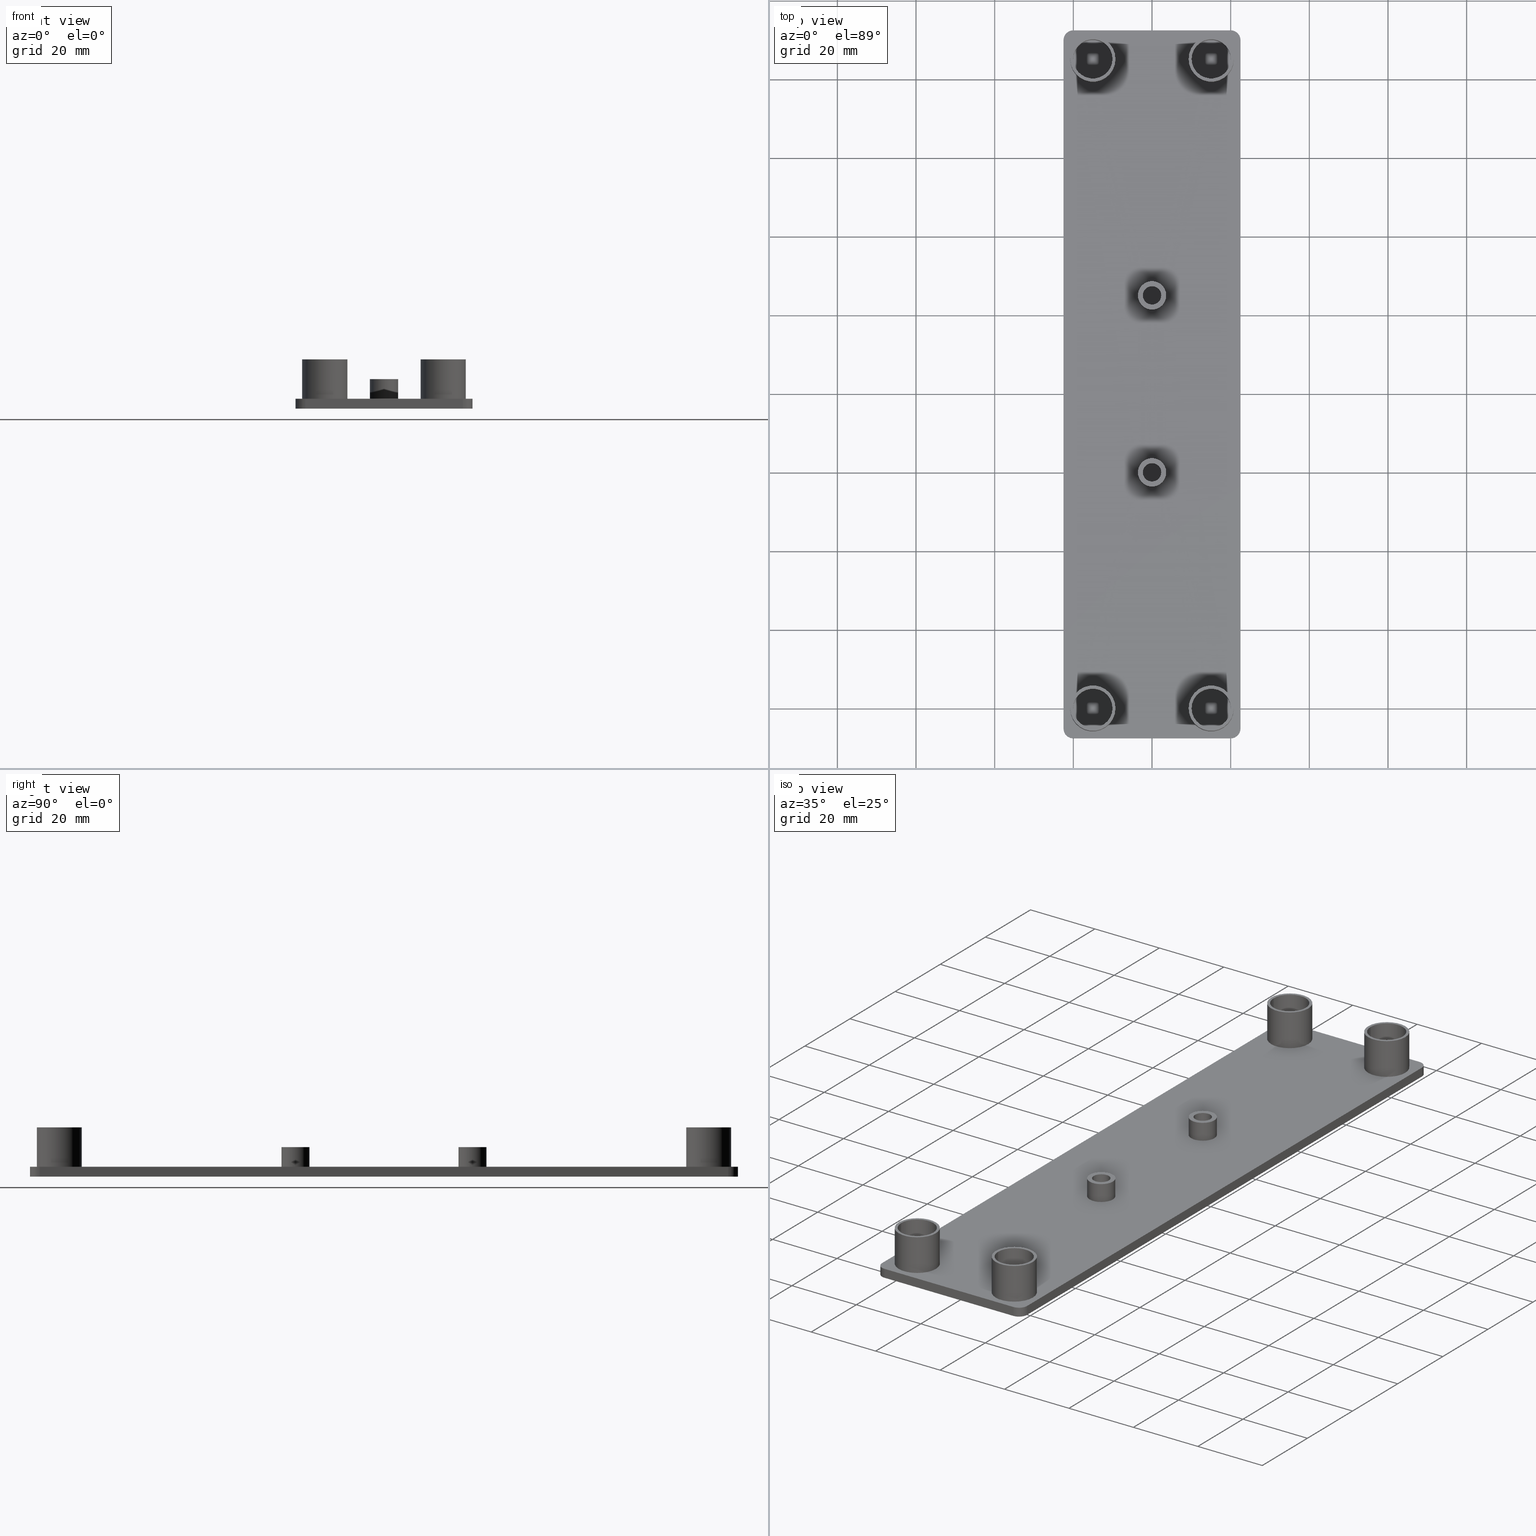
[diagram: canonical four-view strip — front | top / right | iso, engineering-drawing reading convention]
A machine part, canonical four-view strip (front | top / right | iso — engineering-drawing reading convention). The complete STEP part file that produces these views, byte-faithful:
ISO-10303-21;
HEADER;
/* Generated by software containing ST-Developer
 * from STEP Tools, Inc. (www.steptools.com) 
 */

FILE_DESCRIPTION(
/* description */ ('TAPPO 45X180 10CAVE NERO'),
/* implementation_level */ '2;1');

FILE_NAME(
/* name */ 'C:\\Users\\tecnico7\\Desktop\\DTPTR0000047.stp',
/* time_stamp */ '2022-07-07T17:03:05+02:00',
/* author */ ('tecnico7'),
/* organization */ (''),
/* preprocessor_version */ 'ST-DEVELOPER v18.1',
/* originating_system */ 'Autodesk Inventor 2022',
/* authorisation */ '');

FILE_SCHEMA (('AUTOMOTIVE_DESIGN { 1 0 10303 214 3 1 1 }'));
ENDSEC;

DATA;
#10=MECHANICAL_DESIGN_GEOMETRIC_PRESENTATION_REPRESENTATION('',(#448,#449,
#450,#451,#452,#453,#454,#455,#456,#457,#458,#459,#460,#461,#462,#463,#464,
#465,#466,#467,#468,#469,#470,#471,#472,#473,#474,#475,#476,#477,#478,#479,
#480,#481,#482),#906);
#11=SHAPE_REPRESENTATION_RELATIONSHIP('SRR','None',#913,#12);
#12=ADVANCED_BREP_SHAPE_REPRESENTATION('',(#13),#905);
#13=MANIFOLD_SOLID_BREP('None',#517);
#14=FACE_BOUND('',#141,.T.);
#15=FACE_BOUND('',#145,.T.);
#16=FACE_BOUND('',#149,.T.);
#17=FACE_BOUND('',#153,.T.);
#18=FACE_BOUND('',#157,.T.);
#19=FACE_BOUND('',#161,.T.);
#20=FACE_BOUND('',#165,.T.);
#21=FACE_BOUND('',#166,.T.);
#22=FACE_BOUND('',#167,.T.);
#23=FACE_BOUND('',#168,.T.);
#24=FACE_BOUND('',#169,.T.);
#25=FACE_BOUND('',#170,.T.);
#26=LINE('',#791,#54);
#27=LINE('',#796,#55);
#28=LINE('',#802,#56);
#29=LINE('',#807,#57);
#30=LINE('',#813,#58);
#31=LINE('',#818,#59);
#32=LINE('',#824,#60);
#33=LINE('',#829,#61);
#34=LINE('',#835,#62);
#35=LINE('',#840,#63);
#36=LINE('',#846,#64);
#37=LINE('',#851,#65);
#38=LINE('',#858,#66);
#39=LINE('',#862,#67);
#40=LINE('',#866,#68);
#41=LINE('',#869,#69);
#42=LINE('',#874,#70);
#43=LINE('',#875,#71);
#44=LINE('',#879,#72);
#45=LINE('',#882,#73);
#46=LINE('',#884,#74);
#47=LINE('',#888,#75);
#48=LINE('',#891,#76);
#49=LINE('',#892,#77);
#50=LINE('',#894,#78);
#51=LINE('',#895,#79);
#52=LINE('',#897,#80);
#53=LINE('',#898,#81);
#54=VECTOR('',#636,5.749999999977);
#55=VECTOR('',#643,4.99999999998);
#56=VECTOR('',#650,5.749999999977);
#57=VECTOR('',#657,4.99999999998);
#58=VECTOR('',#664,3.5999999999856);
#59=VECTOR('',#671,2.3499999999906);
#60=VECTOR('',#678,3.5999999999856);
#61=VECTOR('',#685,2.3499999999906);
#62=VECTOR('',#692,5.749999999977);
#63=VECTOR('',#699,4.99999999998);
#64=VECTOR('',#706,5.749999999977);
#65=VECTOR('',#713,4.99999999998);
#66=VECTOR('',#720,175.00000099928);
#67=VECTOR('',#723,39.9999539998198);
#68=VECTOR('',#726,175.00000099928);
#69=VECTOR('',#729,39.9999539998198);
#70=VECTOR('',#734,2.5);
#71=VECTOR('',#735,2.5);
#72=VECTOR('',#738,39.9999539998198);
#73=VECTOR('',#741,175.00000099928);
#74=VECTOR('',#742,39.9999539998198);
#75=VECTOR('',#745,175.00000099928);
#76=VECTOR('',#750,2.5);
#77=VECTOR('',#751,2.5);
#78=VECTOR('',#754,2.5);
#79=VECTOR('',#755,2.5);
#80=VECTOR('',#758,2.5);
#81=VECTOR('',#759,2.5);
#82=CYLINDRICAL_SURFACE('',#552,5.749999999977);
#83=CYLINDRICAL_SURFACE('',#555,4.99999999998);
#84=CYLINDRICAL_SURFACE('',#558,5.749999999977);
#85=CYLINDRICAL_SURFACE('',#561,4.99999999998);
#86=CYLINDRICAL_SURFACE('',#564,3.5999999999856);
#87=CYLINDRICAL_SURFACE('',#567,2.3499999999906);
#88=CYLINDRICAL_SURFACE('',#570,3.5999999999856);
#89=CYLINDRICAL_SURFACE('',#573,2.3499999999906);
#90=CYLINDRICAL_SURFACE('',#576,5.749999999977);
#91=CYLINDRICAL_SURFACE('',#579,4.99999999998);
#92=CYLINDRICAL_SURFACE('',#582,5.749999999977);
#93=CYLINDRICAL_SURFACE('',#585,4.99999999998);
#94=CYLINDRICAL_SURFACE('',#593,2.5);
#95=CYLINDRICAL_SURFACE('',#599,2.5);
#96=CYLINDRICAL_SURFACE('',#600,2.5);
#97=CYLINDRICAL_SURFACE('',#601,2.5);
#98=FACE_OUTER_BOUND('',#132,.T.);
#99=FACE_OUTER_BOUND('',#133,.T.);
#100=FACE_OUTER_BOUND('',#134,.T.);
#101=FACE_OUTER_BOUND('',#135,.T.);
#102=FACE_OUTER_BOUND('',#136,.T.);
#103=FACE_OUTER_BOUND('',#137,.T.);
#104=FACE_OUTER_BOUND('',#138,.T.);
#105=FACE_OUTER_BOUND('',#139,.T.);
#106=FACE_OUTER_BOUND('',#140,.T.);
#107=FACE_OUTER_BOUND('',#142,.T.);
#108=FACE_OUTER_BOUND('',#143,.T.);
#109=FACE_OUTER_BOUND('',#144,.T.);
#110=FACE_OUTER_BOUND('',#146,.T.);
#111=FACE_OUTER_BOUND('',#147,.T.);
#112=FACE_OUTER_BOUND('',#148,.T.);
#113=FACE_OUTER_BOUND('',#150,.T.);
#114=FACE_OUTER_BOUND('',#151,.T.);
#115=FACE_OUTER_BOUND('',#152,.T.);
#116=FACE_OUTER_BOUND('',#154,.T.);
#117=FACE_OUTER_BOUND('',#155,.T.);
#118=FACE_OUTER_BOUND('',#156,.T.);
#119=FACE_OUTER_BOUND('',#158,.T.);
#120=FACE_OUTER_BOUND('',#159,.T.);
#121=FACE_OUTER_BOUND('',#160,.T.);
#122=FACE_OUTER_BOUND('',#162,.T.);
#123=FACE_OUTER_BOUND('',#163,.T.);
#124=FACE_OUTER_BOUND('',#164,.T.);
#125=FACE_OUTER_BOUND('',#171,.T.);
#126=FACE_OUTER_BOUND('',#172,.T.);
#127=FACE_OUTER_BOUND('',#173,.T.);
#128=FACE_OUTER_BOUND('',#174,.T.);
#129=FACE_OUTER_BOUND('',#175,.T.);
#130=FACE_OUTER_BOUND('',#176,.T.);
#131=FACE_OUTER_BOUND('',#177,.T.);
#132=EDGE_LOOP('',(#310));
#133=EDGE_LOOP('',(#311));
#134=EDGE_LOOP('',(#312));
#135=EDGE_LOOP('',(#313));
#136=EDGE_LOOP('',(#314));
#137=EDGE_LOOP('',(#315));
#138=EDGE_LOOP('',(#316,#317,#318,#319));
#139=EDGE_LOOP('',(#320,#321,#322,#323));
#140=EDGE_LOOP('',(#324));
#141=EDGE_LOOP('',(#325));
#142=EDGE_LOOP('',(#326,#327,#328,#329));
#143=EDGE_LOOP('',(#330,#331,#332,#333));
#144=EDGE_LOOP('',(#334));
#145=EDGE_LOOP('',(#335));
#146=EDGE_LOOP('',(#336,#337,#338,#339));
#147=EDGE_LOOP('',(#340,#341,#342,#343));
#148=EDGE_LOOP('',(#344));
#149=EDGE_LOOP('',(#345));
#150=EDGE_LOOP('',(#346,#347,#348,#349));
#151=EDGE_LOOP('',(#350,#351,#352,#353));
#152=EDGE_LOOP('',(#354));
#153=EDGE_LOOP('',(#355));
#154=EDGE_LOOP('',(#356,#357,#358,#359));
#155=EDGE_LOOP('',(#360,#361,#362,#363));
#156=EDGE_LOOP('',(#364));
#157=EDGE_LOOP('',(#365));
#158=EDGE_LOOP('',(#366,#367,#368,#369));
#159=EDGE_LOOP('',(#370,#371,#372,#373));
#160=EDGE_LOOP('',(#374));
#161=EDGE_LOOP('',(#375));
#162=EDGE_LOOP('',(#376,#377,#378,#379,#380,#381,#382,#383));
#163=EDGE_LOOP('',(#384,#385,#386,#387));
#164=EDGE_LOOP('',(#388,#389,#390,#391,#392,#393,#394,#395));
#165=EDGE_LOOP('',(#396));
#166=EDGE_LOOP('',(#397));
#167=EDGE_LOOP('',(#398));
#168=EDGE_LOOP('',(#399));
#169=EDGE_LOOP('',(#400));
#170=EDGE_LOOP('',(#401));
#171=EDGE_LOOP('',(#402,#403,#404,#405));
#172=EDGE_LOOP('',(#406,#407,#408,#409));
#173=EDGE_LOOP('',(#410,#411,#412,#413));
#174=EDGE_LOOP('',(#414,#415,#416,#417));
#175=EDGE_LOOP('',(#418,#419,#420,#421));
#176=EDGE_LOOP('',(#422,#423,#424,#425));
#177=EDGE_LOOP('',(#426,#427,#428,#429));
#178=CIRCLE('',#541,4.99999999998);
#179=CIRCLE('',#543,4.99999999998);
#180=CIRCLE('',#545,2.3499999999906);
#181=CIRCLE('',#547,2.3499999999906);
#182=CIRCLE('',#549,4.99999999998);
#183=CIRCLE('',#551,4.99999999998);
#184=CIRCLE('',#553,5.749999999977);
#185=CIRCLE('',#554,5.749999999977);
#186=CIRCLE('',#556,4.99999999998);
#187=CIRCLE('',#559,5.749999999977);
#188=CIRCLE('',#560,5.749999999977);
#189=CIRCLE('',#562,4.99999999998);
#190=CIRCLE('',#565,3.5999999999856);
#191=CIRCLE('',#566,3.5999999999856);
#192=CIRCLE('',#568,2.3499999999906);
#193=CIRCLE('',#571,3.5999999999856);
#194=CIRCLE('',#572,3.5999999999856);
#195=CIRCLE('',#574,2.3499999999906);
#196=CIRCLE('',#577,5.749999999977);
#197=CIRCLE('',#578,5.749999999977);
#198=CIRCLE('',#580,4.99999999998);
#199=CIRCLE('',#583,5.749999999977);
#200=CIRCLE('',#584,5.749999999977);
#201=CIRCLE('',#586,4.99999999998);
#202=CIRCLE('',#589,2.5);
#203=CIRCLE('',#590,2.5);
#204=CIRCLE('',#591,2.5);
#205=CIRCLE('',#592,2.5);
#206=CIRCLE('',#594,2.5);
#207=CIRCLE('',#596,2.5);
#208=CIRCLE('',#597,2.5);
#209=CIRCLE('',#598,2.5);
#210=VERTEX_POINT('',#770);
#211=VERTEX_POINT('',#773);
#212=VERTEX_POINT('',#776);
#213=VERTEX_POINT('',#779);
#214=VERTEX_POINT('',#782);
#215=VERTEX_POINT('',#785);
#216=VERTEX_POINT('',#788);
#217=VERTEX_POINT('',#790);
#218=VERTEX_POINT('',#794);
#219=VERTEX_POINT('',#799);
#220=VERTEX_POINT('',#801);
#221=VERTEX_POINT('',#805);
#222=VERTEX_POINT('',#810);
#223=VERTEX_POINT('',#812);
#224=VERTEX_POINT('',#816);
#225=VERTEX_POINT('',#821);
#226=VERTEX_POINT('',#823);
#227=VERTEX_POINT('',#827);
#228=VERTEX_POINT('',#832);
#229=VERTEX_POINT('',#834);
#230=VERTEX_POINT('',#838);
#231=VERTEX_POINT('',#843);
#232=VERTEX_POINT('',#845);
#233=VERTEX_POINT('',#849);
#234=VERTEX_POINT('',#854);
#235=VERTEX_POINT('',#855);
#236=VERTEX_POINT('',#857);
#237=VERTEX_POINT('',#859);
#238=VERTEX_POINT('',#861);
#239=VERTEX_POINT('',#863);
#240=VERTEX_POINT('',#865);
#241=VERTEX_POINT('',#867);
#242=VERTEX_POINT('',#871);
#243=VERTEX_POINT('',#872);
#244=VERTEX_POINT('',#877);
#245=VERTEX_POINT('',#878);
#246=VERTEX_POINT('',#880);
#247=VERTEX_POINT('',#883);
#248=VERTEX_POINT('',#885);
#249=VERTEX_POINT('',#887);
#250=EDGE_CURVE('',#210,#210,#178,.T.);
#251=EDGE_CURVE('',#211,#211,#179,.T.);
#252=EDGE_CURVE('',#212,#212,#180,.T.);
#253=EDGE_CURVE('',#213,#213,#181,.T.);
#254=EDGE_CURVE('',#214,#214,#182,.T.);
#255=EDGE_CURVE('',#215,#215,#183,.T.);
#256=EDGE_CURVE('',#216,#216,#184,.T.);
#257=EDGE_CURVE('',#216,#217,#26,.T.);
#258=EDGE_CURVE('',#217,#217,#185,.T.);
#259=EDGE_CURVE('',#218,#218,#186,.T.);
#260=EDGE_CURVE('',#218,#215,#27,.T.);
#261=EDGE_CURVE('',#219,#219,#187,.T.);
#262=EDGE_CURVE('',#219,#220,#28,.T.);
#263=EDGE_CURVE('',#220,#220,#188,.T.);
#264=EDGE_CURVE('',#221,#221,#189,.T.);
#265=EDGE_CURVE('',#221,#214,#29,.T.);
#266=EDGE_CURVE('',#222,#222,#190,.T.);
#267=EDGE_CURVE('',#222,#223,#30,.T.);
#268=EDGE_CURVE('',#223,#223,#191,.T.);
#269=EDGE_CURVE('',#224,#224,#192,.T.);
#270=EDGE_CURVE('',#224,#213,#31,.T.);
#271=EDGE_CURVE('',#225,#225,#193,.T.);
#272=EDGE_CURVE('',#225,#226,#32,.T.);
#273=EDGE_CURVE('',#226,#226,#194,.T.);
#274=EDGE_CURVE('',#227,#227,#195,.T.);
#275=EDGE_CURVE('',#227,#212,#33,.T.);
#276=EDGE_CURVE('',#228,#228,#196,.T.);
#277=EDGE_CURVE('',#228,#229,#34,.T.);
#278=EDGE_CURVE('',#229,#229,#197,.T.);
#279=EDGE_CURVE('',#230,#230,#198,.T.);
#280=EDGE_CURVE('',#230,#211,#35,.T.);
#281=EDGE_CURVE('',#231,#231,#199,.T.);
#282=EDGE_CURVE('',#231,#232,#36,.T.);
#283=EDGE_CURVE('',#232,#232,#200,.T.);
#284=EDGE_CURVE('',#233,#233,#201,.T.);
#285=EDGE_CURVE('',#233,#210,#37,.T.);
#286=EDGE_CURVE('',#234,#235,#202,.T.);
#287=EDGE_CURVE('',#236,#235,#38,.T.);
#288=EDGE_CURVE('',#236,#237,#203,.T.);
#289=EDGE_CURVE('',#238,#237,#39,.T.);
#290=EDGE_CURVE('',#238,#239,#204,.T.);
#291=EDGE_CURVE('',#240,#239,#40,.T.);
#292=EDGE_CURVE('',#240,#241,#205,.T.);
#293=EDGE_CURVE('',#234,#241,#41,.T.);
#294=EDGE_CURVE('',#242,#243,#206,.T.);
#295=EDGE_CURVE('',#243,#239,#42,.T.);
#296=EDGE_CURVE('',#242,#238,#43,.T.);
#297=EDGE_CURVE('',#244,#245,#44,.T.);
#298=EDGE_CURVE('',#246,#245,#207,.T.);
#299=EDGE_CURVE('',#246,#243,#45,.T.);
#300=EDGE_CURVE('',#242,#247,#46,.T.);
#301=EDGE_CURVE('',#248,#247,#208,.T.);
#302=EDGE_CURVE('',#248,#249,#47,.T.);
#303=EDGE_CURVE('',#244,#249,#209,.T.);
#304=EDGE_CURVE('',#247,#237,#48,.T.);
#305=EDGE_CURVE('',#248,#236,#49,.T.);
#306=EDGE_CURVE('',#245,#241,#50,.T.);
#307=EDGE_CURVE('',#246,#240,#51,.T.);
#308=EDGE_CURVE('',#249,#235,#52,.T.);
#309=EDGE_CURVE('',#244,#234,#53,.T.);
#310=ORIENTED_EDGE('',*,*,#250,.F.);
#311=ORIENTED_EDGE('',*,*,#251,.F.);
#312=ORIENTED_EDGE('',*,*,#252,.F.);
#313=ORIENTED_EDGE('',*,*,#253,.F.);
#314=ORIENTED_EDGE('',*,*,#254,.F.);
#315=ORIENTED_EDGE('',*,*,#255,.F.);
#316=ORIENTED_EDGE('',*,*,#256,.F.);
#317=ORIENTED_EDGE('',*,*,#257,.T.);
#318=ORIENTED_EDGE('',*,*,#258,.T.);
#319=ORIENTED_EDGE('',*,*,#257,.F.);
#320=ORIENTED_EDGE('',*,*,#259,.F.);
#321=ORIENTED_EDGE('',*,*,#260,.T.);
#322=ORIENTED_EDGE('',*,*,#255,.T.);
#323=ORIENTED_EDGE('',*,*,#260,.F.);
#324=ORIENTED_EDGE('',*,*,#256,.T.);
#325=ORIENTED_EDGE('',*,*,#259,.T.);
#326=ORIENTED_EDGE('',*,*,#261,.F.);
#327=ORIENTED_EDGE('',*,*,#262,.T.);
#328=ORIENTED_EDGE('',*,*,#263,.T.);
#329=ORIENTED_EDGE('',*,*,#262,.F.);
#330=ORIENTED_EDGE('',*,*,#264,.F.);
#331=ORIENTED_EDGE('',*,*,#265,.T.);
#332=ORIENTED_EDGE('',*,*,#254,.T.);
#333=ORIENTED_EDGE('',*,*,#265,.F.);
#334=ORIENTED_EDGE('',*,*,#261,.T.);
#335=ORIENTED_EDGE('',*,*,#264,.T.);
#336=ORIENTED_EDGE('',*,*,#266,.F.);
#337=ORIENTED_EDGE('',*,*,#267,.T.);
#338=ORIENTED_EDGE('',*,*,#268,.T.);
#339=ORIENTED_EDGE('',*,*,#267,.F.);
#340=ORIENTED_EDGE('',*,*,#269,.F.);
#341=ORIENTED_EDGE('',*,*,#270,.T.);
#342=ORIENTED_EDGE('',*,*,#253,.T.);
#343=ORIENTED_EDGE('',*,*,#270,.F.);
#344=ORIENTED_EDGE('',*,*,#266,.T.);
#345=ORIENTED_EDGE('',*,*,#269,.T.);
#346=ORIENTED_EDGE('',*,*,#271,.F.);
#347=ORIENTED_EDGE('',*,*,#272,.T.);
#348=ORIENTED_EDGE('',*,*,#273,.T.);
#349=ORIENTED_EDGE('',*,*,#272,.F.);
#350=ORIENTED_EDGE('',*,*,#274,.F.);
#351=ORIENTED_EDGE('',*,*,#275,.T.);
#352=ORIENTED_EDGE('',*,*,#252,.T.);
#353=ORIENTED_EDGE('',*,*,#275,.F.);
#354=ORIENTED_EDGE('',*,*,#271,.T.);
#355=ORIENTED_EDGE('',*,*,#274,.T.);
#356=ORIENTED_EDGE('',*,*,#276,.F.);
#357=ORIENTED_EDGE('',*,*,#277,.T.);
#358=ORIENTED_EDGE('',*,*,#278,.T.);
#359=ORIENTED_EDGE('',*,*,#277,.F.);
#360=ORIENTED_EDGE('',*,*,#279,.F.);
#361=ORIENTED_EDGE('',*,*,#280,.T.);
#362=ORIENTED_EDGE('',*,*,#251,.T.);
#363=ORIENTED_EDGE('',*,*,#280,.F.);
#364=ORIENTED_EDGE('',*,*,#276,.T.);
#365=ORIENTED_EDGE('',*,*,#279,.T.);
#366=ORIENTED_EDGE('',*,*,#281,.F.);
#367=ORIENTED_EDGE('',*,*,#282,.T.);
#368=ORIENTED_EDGE('',*,*,#283,.T.);
#369=ORIENTED_EDGE('',*,*,#282,.F.);
#370=ORIENTED_EDGE('',*,*,#284,.F.);
#371=ORIENTED_EDGE('',*,*,#285,.T.);
#372=ORIENTED_EDGE('',*,*,#250,.T.);
#373=ORIENTED_EDGE('',*,*,#285,.F.);
#374=ORIENTED_EDGE('',*,*,#281,.T.);
#375=ORIENTED_EDGE('',*,*,#284,.T.);
#376=ORIENTED_EDGE('',*,*,#286,.T.);
#377=ORIENTED_EDGE('',*,*,#287,.F.);
#378=ORIENTED_EDGE('',*,*,#288,.T.);
#379=ORIENTED_EDGE('',*,*,#289,.F.);
#380=ORIENTED_EDGE('',*,*,#290,.T.);
#381=ORIENTED_EDGE('',*,*,#291,.F.);
#382=ORIENTED_EDGE('',*,*,#292,.T.);
#383=ORIENTED_EDGE('',*,*,#293,.F.);
#384=ORIENTED_EDGE('',*,*,#294,.T.);
#385=ORIENTED_EDGE('',*,*,#295,.T.);
#386=ORIENTED_EDGE('',*,*,#290,.F.);
#387=ORIENTED_EDGE('',*,*,#296,.F.);
#388=ORIENTED_EDGE('',*,*,#297,.T.);
#389=ORIENTED_EDGE('',*,*,#298,.F.);
#390=ORIENTED_EDGE('',*,*,#299,.T.);
#391=ORIENTED_EDGE('',*,*,#294,.F.);
#392=ORIENTED_EDGE('',*,*,#300,.T.);
#393=ORIENTED_EDGE('',*,*,#301,.F.);
#394=ORIENTED_EDGE('',*,*,#302,.T.);
#395=ORIENTED_EDGE('',*,*,#303,.F.);
#396=ORIENTED_EDGE('',*,*,#258,.F.);
#397=ORIENTED_EDGE('',*,*,#263,.F.);
#398=ORIENTED_EDGE('',*,*,#268,.F.);
#399=ORIENTED_EDGE('',*,*,#273,.F.);
#400=ORIENTED_EDGE('',*,*,#278,.F.);
#401=ORIENTED_EDGE('',*,*,#283,.F.);
#402=ORIENTED_EDGE('',*,*,#301,.T.);
#403=ORIENTED_EDGE('',*,*,#304,.T.);
#404=ORIENTED_EDGE('',*,*,#288,.F.);
#405=ORIENTED_EDGE('',*,*,#305,.F.);
#406=ORIENTED_EDGE('',*,*,#298,.T.);
#407=ORIENTED_EDGE('',*,*,#306,.T.);
#408=ORIENTED_EDGE('',*,*,#292,.F.);
#409=ORIENTED_EDGE('',*,*,#307,.F.);
#410=ORIENTED_EDGE('',*,*,#303,.T.);
#411=ORIENTED_EDGE('',*,*,#308,.T.);
#412=ORIENTED_EDGE('',*,*,#286,.F.);
#413=ORIENTED_EDGE('',*,*,#309,.F.);
#414=ORIENTED_EDGE('',*,*,#307,.T.);
#415=ORIENTED_EDGE('',*,*,#291,.T.);
#416=ORIENTED_EDGE('',*,*,#295,.F.);
#417=ORIENTED_EDGE('',*,*,#299,.F.);
#418=ORIENTED_EDGE('',*,*,#300,.F.);
#419=ORIENTED_EDGE('',*,*,#296,.T.);
#420=ORIENTED_EDGE('',*,*,#289,.T.);
#421=ORIENTED_EDGE('',*,*,#304,.F.);
#422=ORIENTED_EDGE('',*,*,#302,.F.);
#423=ORIENTED_EDGE('',*,*,#305,.T.);
#424=ORIENTED_EDGE('',*,*,#287,.T.);
#425=ORIENTED_EDGE('',*,*,#308,.F.);
#426=ORIENTED_EDGE('',*,*,#309,.T.);
#427=ORIENTED_EDGE('',*,*,#293,.T.);
#428=ORIENTED_EDGE('',*,*,#306,.F.);
#429=ORIENTED_EDGE('',*,*,#297,.F.);
#430=PLANE('',#540);
#431=PLANE('',#542);
#432=PLANE('',#544);
#433=PLANE('',#546);
#434=PLANE('',#548);
#435=PLANE('',#550);
#436=PLANE('',#557);
#437=PLANE('',#563);
#438=PLANE('',#569);
#439=PLANE('',#575);
#440=PLANE('',#581);
#441=PLANE('',#587);
#442=PLANE('',#588);
#443=PLANE('',#595);
#444=PLANE('',#602);
#445=PLANE('',#603);
#446=PLANE('',#604);
#447=PLANE('',#605);
#448=STYLED_ITEM('',(#923),#483);
#449=STYLED_ITEM('',(#923),#484);
#450=STYLED_ITEM('',(#923),#485);
#451=STYLED_ITEM('',(#923),#486);
#452=STYLED_ITEM('',(#923),#487);
#453=STYLED_ITEM('',(#923),#488);
#454=STYLED_ITEM('',(#923),#489);
#455=STYLED_ITEM('',(#923),#490);
#456=STYLED_ITEM('',(#923),#491);
#457=STYLED_ITEM('',(#923),#492);
#458=STYLED_ITEM('',(#923),#493);
#459=STYLED_ITEM('',(#923),#494);
#460=STYLED_ITEM('',(#923),#495);
#461=STYLED_ITEM('',(#923),#496);
#462=STYLED_ITEM('',(#923),#497);
#463=STYLED_ITEM('',(#923),#498);
#464=STYLED_ITEM('',(#923),#499);
#465=STYLED_ITEM('',(#923),#500);
#466=STYLED_ITEM('',(#923),#501);
#467=STYLED_ITEM('',(#923),#502);
#468=STYLED_ITEM('',(#923),#503);
#469=STYLED_ITEM('',(#923),#504);
#470=STYLED_ITEM('',(#923),#505);
#471=STYLED_ITEM('',(#923),#506);
#472=STYLED_ITEM('',(#923),#507);
#473=STYLED_ITEM('',(#923),#508);
#474=STYLED_ITEM('',(#923),#509);
#475=STYLED_ITEM('',(#923),#510);
#476=STYLED_ITEM('',(#923),#511);
#477=STYLED_ITEM('',(#923),#512);
#478=STYLED_ITEM('',(#923),#513);
#479=STYLED_ITEM('',(#923),#514);
#480=STYLED_ITEM('',(#923),#515);
#481=STYLED_ITEM('',(#923),#516);
#482=STYLED_ITEM('',(#922),#13);
#483=ADVANCED_FACE('',(#98),#430,.T.);
#484=ADVANCED_FACE('',(#99),#431,.T.);
#485=ADVANCED_FACE('',(#100),#432,.T.);
#486=ADVANCED_FACE('',(#101),#433,.T.);
#487=ADVANCED_FACE('',(#102),#434,.T.);
#488=ADVANCED_FACE('',(#103),#435,.T.);
#489=ADVANCED_FACE('',(#104),#82,.T.);
#490=ADVANCED_FACE('',(#105),#83,.F.);
#491=ADVANCED_FACE('',(#106,#14),#436,.T.);
#492=ADVANCED_FACE('',(#107),#84,.T.);
#493=ADVANCED_FACE('',(#108),#85,.F.);
#494=ADVANCED_FACE('',(#109,#15),#437,.T.);
#495=ADVANCED_FACE('',(#110),#86,.T.);
#496=ADVANCED_FACE('',(#111),#87,.F.);
#497=ADVANCED_FACE('',(#112,#16),#438,.T.);
#498=ADVANCED_FACE('',(#113),#88,.T.);
#499=ADVANCED_FACE('',(#114),#89,.F.);
#500=ADVANCED_FACE('',(#115,#17),#439,.T.);
#501=ADVANCED_FACE('',(#116),#90,.T.);
#502=ADVANCED_FACE('',(#117),#91,.F.);
#503=ADVANCED_FACE('',(#118,#18),#440,.T.);
#504=ADVANCED_FACE('',(#119),#92,.T.);
#505=ADVANCED_FACE('',(#120),#93,.F.);
#506=ADVANCED_FACE('',(#121,#19),#441,.T.);
#507=ADVANCED_FACE('',(#122),#442,.F.);
#508=ADVANCED_FACE('',(#123),#94,.T.);
#509=ADVANCED_FACE('',(#124,#20,#21,#22,#23,#24,#25),#443,.T.);
#510=ADVANCED_FACE('',(#125),#95,.T.);
#511=ADVANCED_FACE('',(#126),#96,.T.);
#512=ADVANCED_FACE('',(#127),#97,.T.);
#513=ADVANCED_FACE('',(#128),#444,.F.);
#514=ADVANCED_FACE('',(#129),#445,.F.);
#515=ADVANCED_FACE('',(#130),#446,.F.);
#516=ADVANCED_FACE('',(#131),#447,.F.);
#517=CLOSED_SHELL('',(#483,#484,#485,#486,#487,#488,#489,#490,#491,#492,
#493,#494,#495,#496,#497,#498,#499,#500,#501,#502,#503,#504,#505,#506,#507,
#508,#509,#510,#511,#512,#513,#514,#515,#516));
#518=DERIVED_UNIT_ELEMENT(#521,1.);
#519=DERIVED_UNIT_ELEMENT(#908,-3.);
#520=DIMENSIONAL_EXPONENTS(1.,0.,0.,0.,0.,0.,0.);
#521=(
CONVERSION_BASED_UNIT('gram',#523)
MASS_UNIT()
NAMED_UNIT(#520)
);
#522=(
MASS_UNIT()
NAMED_UNIT(*)
SI_UNIT(.KILO.,.GRAM.)
);
#523=MASS_MEASURE_WITH_UNIT(MASS_MEASURE(0.001),#522);
#524=DERIVED_UNIT((#518,#519));
#525=MEASURE_REPRESENTATION_ITEM('density measure',
POSITIVE_RATIO_MEASURE(1.13),#524);
#526=PROPERTY_DEFINITION_REPRESENTATION(#531,#528);
#527=PROPERTY_DEFINITION_REPRESENTATION(#532,#529);
#528=REPRESENTATION('material name',(#530),#905);
#529=REPRESENTATION('density',(#525),#905);
#530=DESCRIPTIVE_REPRESENTATION_ITEM('NYLON','NYLON');
#531=PROPERTY_DEFINITION('material property','material name',#915);
#532=PROPERTY_DEFINITION('material property','density of part',#915);
#533=DATE_TIME_ROLE('creation_date');
#534=APPLIED_DATE_AND_TIME_ASSIGNMENT(#535,#533,(#915));
#535=DATE_AND_TIME(#536,#537);
#536=CALENDAR_DATE(2011,29,12);
#537=LOCAL_TIME(0,0,0.,#538);
#538=COORDINATED_UNIVERSAL_TIME_OFFSET(0,0,.BEHIND.);
#539=AXIS2_PLACEMENT_3D('placement',#768,#606,#607);
#540=AXIS2_PLACEMENT_3D('',#769,#608,#609);
#541=AXIS2_PLACEMENT_3D('',#771,#610,#611);
#542=AXIS2_PLACEMENT_3D('',#772,#612,#613);
#543=AXIS2_PLACEMENT_3D('',#774,#614,#615);
#544=AXIS2_PLACEMENT_3D('',#775,#616,#617);
#545=AXIS2_PLACEMENT_3D('',#777,#618,#619);
#546=AXIS2_PLACEMENT_3D('',#778,#620,#621);
#547=AXIS2_PLACEMENT_3D('',#780,#622,#623);
#548=AXIS2_PLACEMENT_3D('',#781,#624,#625);
#549=AXIS2_PLACEMENT_3D('',#783,#626,#627);
#550=AXIS2_PLACEMENT_3D('',#784,#628,#629);
#551=AXIS2_PLACEMENT_3D('',#786,#630,#631);
#552=AXIS2_PLACEMENT_3D('',#787,#632,#633);
#553=AXIS2_PLACEMENT_3D('',#789,#634,#635);
#554=AXIS2_PLACEMENT_3D('',#792,#637,#638);
#555=AXIS2_PLACEMENT_3D('',#793,#639,#640);
#556=AXIS2_PLACEMENT_3D('',#795,#641,#642);
#557=AXIS2_PLACEMENT_3D('',#797,#644,#645);
#558=AXIS2_PLACEMENT_3D('',#798,#646,#647);
#559=AXIS2_PLACEMENT_3D('',#800,#648,#649);
#560=AXIS2_PLACEMENT_3D('',#803,#651,#652);
#561=AXIS2_PLACEMENT_3D('',#804,#653,#654);
#562=AXIS2_PLACEMENT_3D('',#806,#655,#656);
#563=AXIS2_PLACEMENT_3D('',#808,#658,#659);
#564=AXIS2_PLACEMENT_3D('',#809,#660,#661);
#565=AXIS2_PLACEMENT_3D('',#811,#662,#663);
#566=AXIS2_PLACEMENT_3D('',#814,#665,#666);
#567=AXIS2_PLACEMENT_3D('',#815,#667,#668);
#568=AXIS2_PLACEMENT_3D('',#817,#669,#670);
#569=AXIS2_PLACEMENT_3D('',#819,#672,#673);
#570=AXIS2_PLACEMENT_3D('',#820,#674,#675);
#571=AXIS2_PLACEMENT_3D('',#822,#676,#677);
#572=AXIS2_PLACEMENT_3D('',#825,#679,#680);
#573=AXIS2_PLACEMENT_3D('',#826,#681,#682);
#574=AXIS2_PLACEMENT_3D('',#828,#683,#684);
#575=AXIS2_PLACEMENT_3D('',#830,#686,#687);
#576=AXIS2_PLACEMENT_3D('',#831,#688,#689);
#577=AXIS2_PLACEMENT_3D('',#833,#690,#691);
#578=AXIS2_PLACEMENT_3D('',#836,#693,#694);
#579=AXIS2_PLACEMENT_3D('',#837,#695,#696);
#580=AXIS2_PLACEMENT_3D('',#839,#697,#698);
#581=AXIS2_PLACEMENT_3D('',#841,#700,#701);
#582=AXIS2_PLACEMENT_3D('',#842,#702,#703);
#583=AXIS2_PLACEMENT_3D('',#844,#704,#705);
#584=AXIS2_PLACEMENT_3D('',#847,#707,#708);
#585=AXIS2_PLACEMENT_3D('',#848,#709,#710);
#586=AXIS2_PLACEMENT_3D('',#850,#711,#712);
#587=AXIS2_PLACEMENT_3D('',#852,#714,#715);
#588=AXIS2_PLACEMENT_3D('',#853,#716,#717);
#589=AXIS2_PLACEMENT_3D('',#856,#718,#719);
#590=AXIS2_PLACEMENT_3D('',#860,#721,#722);
#591=AXIS2_PLACEMENT_3D('',#864,#724,#725);
#592=AXIS2_PLACEMENT_3D('',#868,#727,#728);
#593=AXIS2_PLACEMENT_3D('',#870,#730,#731);
#594=AXIS2_PLACEMENT_3D('',#873,#732,#733);
#595=AXIS2_PLACEMENT_3D('',#876,#736,#737);
#596=AXIS2_PLACEMENT_3D('',#881,#739,#740);
#597=AXIS2_PLACEMENT_3D('',#886,#743,#744);
#598=AXIS2_PLACEMENT_3D('',#889,#746,#747);
#599=AXIS2_PLACEMENT_3D('',#890,#748,#749);
#600=AXIS2_PLACEMENT_3D('',#893,#752,#753);
#601=AXIS2_PLACEMENT_3D('',#896,#756,#757);
#602=AXIS2_PLACEMENT_3D('',#899,#760,#761);
#603=AXIS2_PLACEMENT_3D('',#900,#762,#763);
#604=AXIS2_PLACEMENT_3D('',#901,#764,#765);
#605=AXIS2_PLACEMENT_3D('',#902,#766,#767);
#606=DIRECTION('axis',(0.,0.,1.));
#607=DIRECTION('refdir',(1.,0.,0.));
#608=DIRECTION('center_axis',(0.,0.,1.));
#609=DIRECTION('ref_axis',(1.,0.,0.));
#610=DIRECTION('center_axis',(0.,0.,-1.));
#611=DIRECTION('ref_axis',(1.,0.,0.));
#612=DIRECTION('center_axis',(0.,0.,1.));
#613=DIRECTION('ref_axis',(1.,0.,0.));
#614=DIRECTION('center_axis',(0.,0.,-1.));
#615=DIRECTION('ref_axis',(1.,0.,0.));
#616=DIRECTION('center_axis',(0.,0.,1.));
#617=DIRECTION('ref_axis',(1.,0.,0.));
#618=DIRECTION('center_axis',(0.,0.,-1.));
#619=DIRECTION('ref_axis',(1.,0.,0.));
#620=DIRECTION('center_axis',(0.,0.,1.));
#621=DIRECTION('ref_axis',(1.,0.,0.));
#622=DIRECTION('center_axis',(0.,0.,-1.));
#623=DIRECTION('ref_axis',(1.,0.,0.));
#624=DIRECTION('center_axis',(0.,0.,1.));
#625=DIRECTION('ref_axis',(1.,0.,0.));
#626=DIRECTION('center_axis',(0.,0.,-1.));
#627=DIRECTION('ref_axis',(1.,0.,0.));
#628=DIRECTION('center_axis',(0.,0.,1.));
#629=DIRECTION('ref_axis',(1.,0.,0.));
#630=DIRECTION('center_axis',(0.,0.,-1.));
#631=DIRECTION('ref_axis',(1.,0.,0.));
#632=DIRECTION('center_axis',(0.,0.,1.));
#633=DIRECTION('ref_axis',(1.,0.,0.));
#634=DIRECTION('center_axis',(0.,0.,1.));
#635=DIRECTION('ref_axis',(1.,0.,0.));
#636=DIRECTION('',(0.,0.,-1.));
#637=DIRECTION('center_axis',(0.,0.,1.));
#638=DIRECTION('ref_axis',(1.,0.,0.));
#639=DIRECTION('center_axis',(0.,0.,-1.));
#640=DIRECTION('ref_axis',(1.,0.,0.));
#641=DIRECTION('center_axis',(0.,0.,-1.));
#642=DIRECTION('ref_axis',(1.,0.,0.));
#643=DIRECTION('',(0.,0.,-1.));
#644=DIRECTION('center_axis',(0.,0.,1.));
#645=DIRECTION('ref_axis',(1.,0.,0.));
#646=DIRECTION('center_axis',(0.,0.,1.));
#647=DIRECTION('ref_axis',(1.,0.,0.));
#648=DIRECTION('center_axis',(0.,0.,1.));
#649=DIRECTION('ref_axis',(1.,0.,0.));
#650=DIRECTION('',(0.,0.,-1.));
#651=DIRECTION('center_axis',(0.,0.,1.));
#652=DIRECTION('ref_axis',(1.,0.,0.));
#653=DIRECTION('center_axis',(0.,0.,-1.));
#654=DIRECTION('ref_axis',(1.,0.,0.));
#655=DIRECTION('center_axis',(0.,0.,-1.));
#656=DIRECTION('ref_axis',(1.,0.,0.));
#657=DIRECTION('',(0.,0.,-1.));
#658=DIRECTION('center_axis',(0.,0.,1.));
#659=DIRECTION('ref_axis',(1.,0.,0.));
#660=DIRECTION('center_axis',(0.,0.,1.));
#661=DIRECTION('ref_axis',(1.,0.,0.));
#662=DIRECTION('center_axis',(0.,0.,1.));
#663=DIRECTION('ref_axis',(1.,0.,0.));
#664=DIRECTION('',(0.,0.,-1.));
#665=DIRECTION('center_axis',(0.,0.,1.));
#666=DIRECTION('ref_axis',(1.,0.,0.));
#667=DIRECTION('center_axis',(0.,0.,-1.));
#668=DIRECTION('ref_axis',(1.,0.,0.));
#669=DIRECTION('center_axis',(0.,0.,-1.));
#670=DIRECTION('ref_axis',(1.,0.,0.));
#671=DIRECTION('',(0.,0.,-1.));
#672=DIRECTION('center_axis',(0.,0.,1.));
#673=DIRECTION('ref_axis',(1.,0.,0.));
#674=DIRECTION('center_axis',(0.,0.,1.));
#675=DIRECTION('ref_axis',(1.,0.,0.));
#676=DIRECTION('center_axis',(0.,0.,1.));
#677=DIRECTION('ref_axis',(1.,0.,0.));
#678=DIRECTION('',(0.,0.,-1.));
#679=DIRECTION('center_axis',(0.,0.,1.));
#680=DIRECTION('ref_axis',(1.,0.,0.));
#681=DIRECTION('center_axis',(0.,0.,-1.));
#682=DIRECTION('ref_axis',(1.,0.,0.));
#683=DIRECTION('center_axis',(0.,0.,-1.));
#684=DIRECTION('ref_axis',(1.,0.,0.));
#685=DIRECTION('',(0.,0.,-1.));
#686=DIRECTION('center_axis',(0.,0.,1.));
#687=DIRECTION('ref_axis',(1.,0.,0.));
#688=DIRECTION('center_axis',(0.,0.,1.));
#689=DIRECTION('ref_axis',(1.,0.,0.));
#690=DIRECTION('center_axis',(0.,0.,1.));
#691=DIRECTION('ref_axis',(1.,0.,0.));
#692=DIRECTION('',(0.,0.,-1.));
#693=DIRECTION('center_axis',(0.,0.,1.));
#694=DIRECTION('ref_axis',(1.,0.,0.));
#695=DIRECTION('center_axis',(0.,0.,-1.));
#696=DIRECTION('ref_axis',(1.,0.,0.));
#697=DIRECTION('center_axis',(0.,0.,-1.));
#698=DIRECTION('ref_axis',(1.,0.,0.));
#699=DIRECTION('',(0.,0.,-1.));
#700=DIRECTION('center_axis',(0.,0.,1.));
#701=DIRECTION('ref_axis',(1.,0.,0.));
#702=DIRECTION('center_axis',(0.,0.,1.));
#703=DIRECTION('ref_axis',(1.,0.,0.));
#704=DIRECTION('center_axis',(0.,0.,1.));
#705=DIRECTION('ref_axis',(1.,0.,0.));
#706=DIRECTION('',(0.,0.,-1.));
#707=DIRECTION('center_axis',(0.,0.,1.));
#708=DIRECTION('ref_axis',(1.,0.,0.));
#709=DIRECTION('center_axis',(0.,0.,-1.));
#710=DIRECTION('ref_axis',(1.,0.,0.));
#711=DIRECTION('center_axis',(0.,0.,-1.));
#712=DIRECTION('ref_axis',(1.,0.,0.));
#713=DIRECTION('',(0.,0.,-1.));
#714=DIRECTION('center_axis',(0.,0.,1.));
#715=DIRECTION('ref_axis',(1.,0.,0.));
#716=DIRECTION('center_axis',(0.,0.,1.));
#717=DIRECTION('ref_axis',(1.,0.,0.));
#718=DIRECTION('center_axis',(0.,0.,-1.));
#719=DIRECTION('ref_axis',(0.,1.,0.));
#720=DIRECTION('',(0.,1.,0.));
#721=DIRECTION('center_axis',(0.,0.,-1.));
#722=DIRECTION('ref_axis',(1.,0.,0.));
#723=DIRECTION('',(1.,0.,0.));
#724=DIRECTION('center_axis',(0.,0.,-1.));
#725=DIRECTION('ref_axis',(0.,-1.,0.));
#726=DIRECTION('',(0.,-1.,0.));
#727=DIRECTION('center_axis',(0.,0.,-1.));
#728=DIRECTION('ref_axis',(-1.,0.,0.));
#729=DIRECTION('',(-1.,0.,0.));
#730=DIRECTION('center_axis',(0.,0.,-1.));
#731=DIRECTION('ref_axis',(0.,-1.,0.));
#732=DIRECTION('center_axis',(0.,0.,-1.));
#733=DIRECTION('ref_axis',(0.,-1.,0.));
#734=DIRECTION('',(0.,0.,-1.));
#735=DIRECTION('',(0.,0.,-1.));
#736=DIRECTION('center_axis',(0.,0.,1.));
#737=DIRECTION('ref_axis',(1.,0.,0.));
#738=DIRECTION('',(-1.,0.,0.));
#739=DIRECTION('center_axis',(0.,0.,-1.));
#740=DIRECTION('ref_axis',(-1.,0.,0.));
#741=DIRECTION('',(0.,-1.,0.));
#742=DIRECTION('',(1.,0.,0.));
#743=DIRECTION('center_axis',(0.,0.,-1.));
#744=DIRECTION('ref_axis',(1.,0.,0.));
#745=DIRECTION('',(0.,1.,0.));
#746=DIRECTION('center_axis',(0.,0.,-1.));
#747=DIRECTION('ref_axis',(0.,1.,0.));
#748=DIRECTION('center_axis',(0.,0.,-1.));
#749=DIRECTION('ref_axis',(1.,0.,0.));
#750=DIRECTION('',(0.,0.,-1.));
#751=DIRECTION('',(0.,0.,-1.));
#752=DIRECTION('center_axis',(0.,0.,-1.));
#753=DIRECTION('ref_axis',(-1.,0.,0.));
#754=DIRECTION('',(0.,0.,-1.));
#755=DIRECTION('',(0.,0.,-1.));
#756=DIRECTION('center_axis',(0.,0.,-1.));
#757=DIRECTION('ref_axis',(0.,1.,0.));
#758=DIRECTION('',(0.,0.,-1.));
#759=DIRECTION('',(0.,0.,-1.));
#760=DIRECTION('center_axis',(1.,0.,0.));
#761=DIRECTION('ref_axis',(0.,0.,-1.));
#762=DIRECTION('center_axis',(0.,1.,0.));
#763=DIRECTION('ref_axis',(0.,0.,1.));
#764=DIRECTION('center_axis',(-1.,0.,0.));
#765=DIRECTION('ref_axis',(0.,0.,1.));
#766=DIRECTION('center_axis',(0.,-1.,0.));
#767=DIRECTION('ref_axis',(0.,0.,-1.));
#768=CARTESIAN_POINT('',(0.,0.,0.));
#769=CARTESIAN_POINT('Origin',(-27.0000096836652,-85.500041855611,0.));
#770=CARTESIAN_POINT('',(10.0499779999595,105.04999999958,0.));
#771=CARTESIAN_POINT('Origin',(15.0499779999395,105.04999999958,0.));
#772=CARTESIAN_POINT('Origin',(-27.0000096836652,-85.500041855611,0.));
#773=CARTESIAN_POINT('',(-20.0500219999199,105.05004499958,0.));
#774=CARTESIAN_POINT('Origin',(-15.0500219999399,105.05004499958,0.));
#775=CARTESIAN_POINT('Origin',(-27.0000096836652,-85.500041855611,0.));
#776=CARTESIAN_POINT('',(-2.3499999999906,44.9999999998199,0.));
#777=CARTESIAN_POINT('Origin',(0.,44.9999999998199,0.));
#778=CARTESIAN_POINT('Origin',(-27.0000096836652,-85.500041855611,0.));
#779=CARTESIAN_POINT('',(-2.3499999999906,0.,0.));
#780=CARTESIAN_POINT('Origin',(0.,0.,0.));
#781=CARTESIAN_POINT('Origin',(-27.0000096836652,-85.500041855611,0.));
#782=CARTESIAN_POINT('',(-20.0500189999161,-60.0500449997599,0.));
#783=CARTESIAN_POINT('Origin',(-15.0500189999361,-60.0500449997599,0.));
#784=CARTESIAN_POINT('Origin',(-27.0000096836652,-85.500041855611,0.));
#785=CARTESIAN_POINT('',(10.0499809999637,-60.0500449997599,0.));
#786=CARTESIAN_POINT('Origin',(15.0499809999437,-60.0500449997599,0.));
#787=CARTESIAN_POINT('Origin',(15.0499809999437,-60.0500449997599,0.));
#788=CARTESIAN_POINT('',(9.29998099996673,-60.0500449997599,10.));
#789=CARTESIAN_POINT('Origin',(15.0499809999437,-60.0500449997599,10.));
#790=CARTESIAN_POINT('',(9.29998099996673,-60.0500449997599,0.));
#791=CARTESIAN_POINT('',(9.29998099996673,-60.0500449997599,0.));
#792=CARTESIAN_POINT('Origin',(15.0499809999437,-60.0500449997599,0.));
#793=CARTESIAN_POINT('Origin',(15.0499809999437,-60.0500449997599,0.));
#794=CARTESIAN_POINT('',(10.0499809999637,-60.0500449997599,10.));
#795=CARTESIAN_POINT('Origin',(15.0499809999437,-60.0500449997599,10.));
#796=CARTESIAN_POINT('',(10.0499809999637,-60.0500449997599,0.));
#797=CARTESIAN_POINT('Origin',(8.14997627532375,-66.9500497243771,10.));
#798=CARTESIAN_POINT('Origin',(-15.0500189999361,-60.0500449997599,0.));
#799=CARTESIAN_POINT('',(-20.8000189999131,-60.0500449997599,10.));
#800=CARTESIAN_POINT('Origin',(-15.0500189999361,-60.0500449997599,10.));
#801=CARTESIAN_POINT('',(-20.8000189999131,-60.0500449997599,0.));
#802=CARTESIAN_POINT('',(-20.8000189999131,-60.0500449997599,0.));
#803=CARTESIAN_POINT('Origin',(-15.0500189999361,-60.0500449997599,0.));
#804=CARTESIAN_POINT('Origin',(-15.0500189999361,-60.0500449997599,0.));
#805=CARTESIAN_POINT('',(-20.0500189999161,-60.0500449997599,10.));
#806=CARTESIAN_POINT('Origin',(-15.0500189999361,-60.0500449997599,10.));
#807=CARTESIAN_POINT('',(-20.0500189999161,-60.0500449997599,0.));
#808=CARTESIAN_POINT('Origin',(-21.9500237245561,-66.9500497243771,10.));
#809=CARTESIAN_POINT('Origin',(0.,0.,0.));
#810=CARTESIAN_POINT('',(-3.5999999999856,0.,5.));
#811=CARTESIAN_POINT('Origin',(0.,0.,5.));
#812=CARTESIAN_POINT('',(-3.5999999999856,0.,0.));
#813=CARTESIAN_POINT('',(-3.5999999999856,-4.40872847691284E-16,0.));
#814=CARTESIAN_POINT('Origin',(0.,0.,0.));
#815=CARTESIAN_POINT('Origin',(0.,0.,0.));
#816=CARTESIAN_POINT('',(-2.3499999999906,0.,5.));
#817=CARTESIAN_POINT('Origin',(0.,0.,5.));
#818=CARTESIAN_POINT('',(-2.3499999999906,2.87791997798477E-16,0.));
#819=CARTESIAN_POINT('Origin',(-4.32000472446452,-4.32000472446271,5.));
#820=CARTESIAN_POINT('Origin',(0.,44.9999999998199,0.));
#821=CARTESIAN_POINT('',(-3.5999999999856,44.9999999998199,5.));
#822=CARTESIAN_POINT('Origin',(0.,44.9999999998199,5.));
#823=CARTESIAN_POINT('',(-3.5999999999856,44.9999999998199,0.));
#824=CARTESIAN_POINT('',(-3.5999999999856,44.9999999998199,0.));
#825=CARTESIAN_POINT('Origin',(0.,44.9999999998199,0.));
#826=CARTESIAN_POINT('Origin',(0.,44.9999999998199,0.));
#827=CARTESIAN_POINT('',(-2.3499999999906,44.9999999998199,5.));
#828=CARTESIAN_POINT('Origin',(0.,44.9999999998199,5.));
#829=CARTESIAN_POINT('',(-2.3499999999906,44.9999999998199,0.));
#830=CARTESIAN_POINT('Origin',(-4.32000472446452,40.6799952753731,5.));
#831=CARTESIAN_POINT('Origin',(-15.0500219999399,105.05004499958,0.));
#832=CARTESIAN_POINT('',(-20.8000219999169,105.05004499958,10.));
#833=CARTESIAN_POINT('Origin',(-15.0500219999399,105.05004499958,10.));
#834=CARTESIAN_POINT('',(-20.8000219999169,105.05004499958,0.));
#835=CARTESIAN_POINT('',(-20.8000219999169,105.05004499958,0.));
#836=CARTESIAN_POINT('Origin',(-15.0500219999399,105.05004499958,0.));
#837=CARTESIAN_POINT('Origin',(-15.0500219999399,105.05004499958,0.));
#838=CARTESIAN_POINT('',(-20.0500219999199,105.05004499958,10.));
#839=CARTESIAN_POINT('Origin',(-15.0500219999399,105.05004499958,10.));
#840=CARTESIAN_POINT('',(-20.0500219999199,105.05004499958,0.));
#841=CARTESIAN_POINT('Origin',(-21.9500267245598,98.150040274988,10.));
#842=CARTESIAN_POINT('Origin',(15.0499779999395,105.04999999958,0.));
#843=CARTESIAN_POINT('',(9.29997799996253,105.04999999958,10.));
#844=CARTESIAN_POINT('Origin',(15.0499779999395,105.04999999958,10.));
#845=CARTESIAN_POINT('',(9.29997799996253,105.04999999958,0.));
#846=CARTESIAN_POINT('',(9.29997799996253,105.04999999958,0.));
#847=CARTESIAN_POINT('Origin',(15.0499779999395,105.04999999958,0.));
#848=CARTESIAN_POINT('Origin',(15.0499779999395,105.04999999958,0.));
#849=CARTESIAN_POINT('',(10.0499779999595,105.04999999958,10.));
#850=CARTESIAN_POINT('Origin',(15.0499779999395,105.04999999958,10.));
#851=CARTESIAN_POINT('',(10.0499779999595,105.04999999958,0.));
#852=CARTESIAN_POINT('Origin',(8.14997327531955,98.1499952749878,10.));
#853=CARTESIAN_POINT('Origin',(-27.0000096836652,-85.500041855611,-2.5));
#854=CARTESIAN_POINT('',(19.9999799999136,112.49999999955,-2.5));
#855=CARTESIAN_POINT('',(22.4999799999136,109.99999999955,-2.5));
#856=CARTESIAN_POINT('Origin',(19.9999799999136,109.99999999955,-2.5));
#857=CARTESIAN_POINT('',(22.4999799999136,-65.0000009997302,-2.5));
#858=CARTESIAN_POINT('',(22.4999799999136,-65.0000009997302,-2.5));
#859=CARTESIAN_POINT('',(19.9999799999136,-67.5000009997302,-2.5));
#860=CARTESIAN_POINT('Origin',(19.9999799999136,-65.0000009997302,-2.5));
#861=CARTESIAN_POINT('',(-19.9999739999062,-67.5000009997302,-2.5));
#862=CARTESIAN_POINT('',(-19.9999739999062,-67.5000009997302,-2.5));
#863=CARTESIAN_POINT('',(-22.4999739999062,-65.0000009997302,-2.5));
#864=CARTESIAN_POINT('Origin',(-19.9999739999062,-65.0000009997302,-2.5));
#865=CARTESIAN_POINT('',(-22.4999739999062,109.99999999955,-2.5));
#866=CARTESIAN_POINT('',(-22.4999739999062,109.99999999955,-2.5));
#867=CARTESIAN_POINT('',(-19.9999739999062,112.49999999955,-2.5));
#868=CARTESIAN_POINT('Origin',(-19.9999739999062,109.99999999955,-2.5));
#869=CARTESIAN_POINT('',(19.9999799999136,112.49999999955,-2.5));
#870=CARTESIAN_POINT('Origin',(-19.9999739999062,-65.0000009997302,0.));
#871=CARTESIAN_POINT('',(-19.9999739999062,-67.5000009997302,0.));
#872=CARTESIAN_POINT('',(-22.4999739999062,-65.0000009997302,0.));
#873=CARTESIAN_POINT('Origin',(-19.9999739999062,-65.0000009997302,0.));
#874=CARTESIAN_POINT('',(-22.4999739999062,-65.0000009997302,0.));
#875=CARTESIAN_POINT('',(-19.9999739999062,-67.5000009997302,0.));
#876=CARTESIAN_POINT('Origin',(-27.0000096836652,-85.500041855611,0.));
#877=CARTESIAN_POINT('',(19.9999799999136,112.49999999955,0.));
#878=CARTESIAN_POINT('',(-19.9999739999062,112.49999999955,0.));
#879=CARTESIAN_POINT('',(19.9999799999136,112.49999999955,0.));
#880=CARTESIAN_POINT('',(-22.4999739999062,109.99999999955,0.));
#881=CARTESIAN_POINT('Origin',(-19.9999739999062,109.99999999955,0.));
#882=CARTESIAN_POINT('',(-22.4999739999062,109.99999999955,0.));
#883=CARTESIAN_POINT('',(19.9999799999136,-67.5000009997302,0.));
#884=CARTESIAN_POINT('',(-19.9999739999062,-67.5000009997302,0.));
#885=CARTESIAN_POINT('',(22.4999799999136,-65.0000009997302,0.));
#886=CARTESIAN_POINT('Origin',(19.9999799999136,-65.0000009997302,0.));
#887=CARTESIAN_POINT('',(22.4999799999136,109.99999999955,0.));
#888=CARTESIAN_POINT('',(22.4999799999136,-65.0000009997302,0.));
#889=CARTESIAN_POINT('Origin',(19.9999799999136,109.99999999955,0.));
#890=CARTESIAN_POINT('Origin',(19.9999799999136,-65.0000009997302,0.));
#891=CARTESIAN_POINT('',(19.9999799999136,-67.5000009997302,0.));
#892=CARTESIAN_POINT('',(22.4999799999136,-65.0000009997302,0.));
#893=CARTESIAN_POINT('Origin',(-19.9999739999062,109.99999999955,0.));
#894=CARTESIAN_POINT('',(-19.9999739999062,112.49999999955,0.));
#895=CARTESIAN_POINT('',(-22.4999739999062,109.99999999955,0.));
#896=CARTESIAN_POINT('Origin',(19.9999799999136,109.99999999955,0.));
#897=CARTESIAN_POINT('',(22.4999799999136,109.99999999955,0.));
#898=CARTESIAN_POINT('',(19.9999799999136,112.49999999955,0.));
#899=CARTESIAN_POINT('Origin',(-22.4999739999062,112.49999999955,0.));
#900=CARTESIAN_POINT('Origin',(-22.4999739999062,-67.5000009997302,0.));
#901=CARTESIAN_POINT('Origin',(22.4999799999136,-67.5000009997302,0.));
#902=CARTESIAN_POINT('Origin',(22.4999799999136,112.49999999955,0.));
#903=UNCERTAINTY_MEASURE_WITH_UNIT(LENGTH_MEASURE(0.01),#907,
'DISTANCE_ACCURACY_VALUE',
'Maximum model space distance between geometric entities at asserted c
onnectivities');
#904=UNCERTAINTY_MEASURE_WITH_UNIT(LENGTH_MEASURE(0.01),#907,
'DISTANCE_ACCURACY_VALUE',
'Maximum model space distance between geometric entities at asserted c
onnectivities');
#905=(
GEOMETRIC_REPRESENTATION_CONTEXT(3)
GLOBAL_UNCERTAINTY_ASSIGNED_CONTEXT((#903))
GLOBAL_UNIT_ASSIGNED_CONTEXT((#907,#909,#910))
REPRESENTATION_CONTEXT('','3D')
);
#906=(
GEOMETRIC_REPRESENTATION_CONTEXT(3)
GLOBAL_UNCERTAINTY_ASSIGNED_CONTEXT((#904))
GLOBAL_UNIT_ASSIGNED_CONTEXT((#907,#909,#910))
REPRESENTATION_CONTEXT('','3D')
);
#907=(
LENGTH_UNIT()
NAMED_UNIT(*)
SI_UNIT(.MILLI.,.METRE.)
);
#908=(
LENGTH_UNIT()
NAMED_UNIT(*)
SI_UNIT(.CENTI.,.METRE.)
);
#909=(
NAMED_UNIT(*)
PLANE_ANGLE_UNIT()
SI_UNIT($,.RADIAN.)
);
#910=(
NAMED_UNIT(*)
SI_UNIT($,.STERADIAN.)
SOLID_ANGLE_UNIT()
);
#911=SHAPE_DEFINITION_REPRESENTATION(#912,#913);
#912=PRODUCT_DEFINITION_SHAPE('',$,#915);
#913=SHAPE_REPRESENTATION('',(#539),#905);
#914=PRODUCT_DEFINITION_CONTEXT('part definition',#919,'design');
#915=PRODUCT_DEFINITION('PROAC070-0','PROAC070-0',#916,#914);
#916=PRODUCT_DEFINITION_FORMATION('A',$,#921);
#917=PRODUCT_RELATED_PRODUCT_CATEGORY('PROAC070-0','PROAC070-0',(#921));
#918=APPLICATION_PROTOCOL_DEFINITION('international standard',
'automotive_design',2009,#919);
#919=APPLICATION_CONTEXT(
'Core Data for Automotive Mechanical Design Process');
#920=PRODUCT_CONTEXT('part definition',#919,'mechanical');
#921=PRODUCT('PROAC070-0','PROAC070-0','TAPPO 45X180 10CAVE NERO',(#920));
#922=PRESENTATION_STYLE_ASSIGNMENT((#924));
#923=PRESENTATION_STYLE_ASSIGNMENT((#925));
#924=SURFACE_STYLE_USAGE(.BOTH.,#930);
#925=SURFACE_STYLE_USAGE(.BOTH.,#931);
#926=SURFACE_STYLE_RENDERING_WITH_PROPERTIES($,#938,(#928));
#927=SURFACE_STYLE_RENDERING_WITH_PROPERTIES($,#939,(#929));
#928=SURFACE_STYLE_TRANSPARENT(0.);
#929=SURFACE_STYLE_TRANSPARENT(0.);
#930=SURFACE_SIDE_STYLE('',(#932,#926));
#931=SURFACE_SIDE_STYLE('',(#933,#927));
#932=SURFACE_STYLE_FILL_AREA(#934);
#933=SURFACE_STYLE_FILL_AREA(#935);
#934=FILL_AREA_STYLE('',(#936));
#935=FILL_AREA_STYLE('',(#937));
#936=FILL_AREA_STYLE_COLOUR('',#938);
#937=FILL_AREA_STYLE_COLOUR('',#939);
#938=COLOUR_RGB('',1.,0.968627450980392,0.725490196078431);
#939=COLOUR_RGB('',0.,0.,0.);
ENDSEC;
END-ISO-10303-21;
